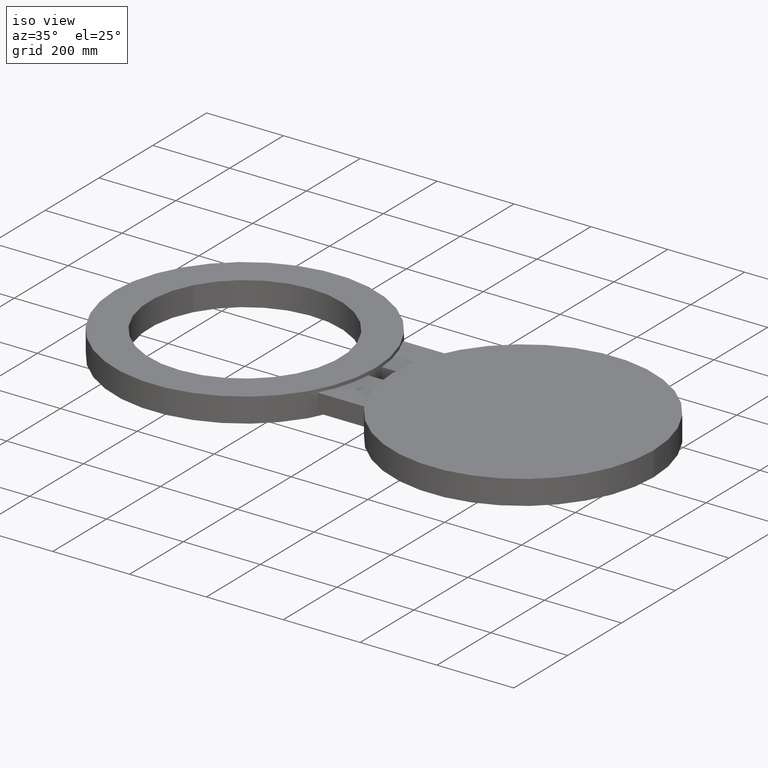
[diagram: clean part render]
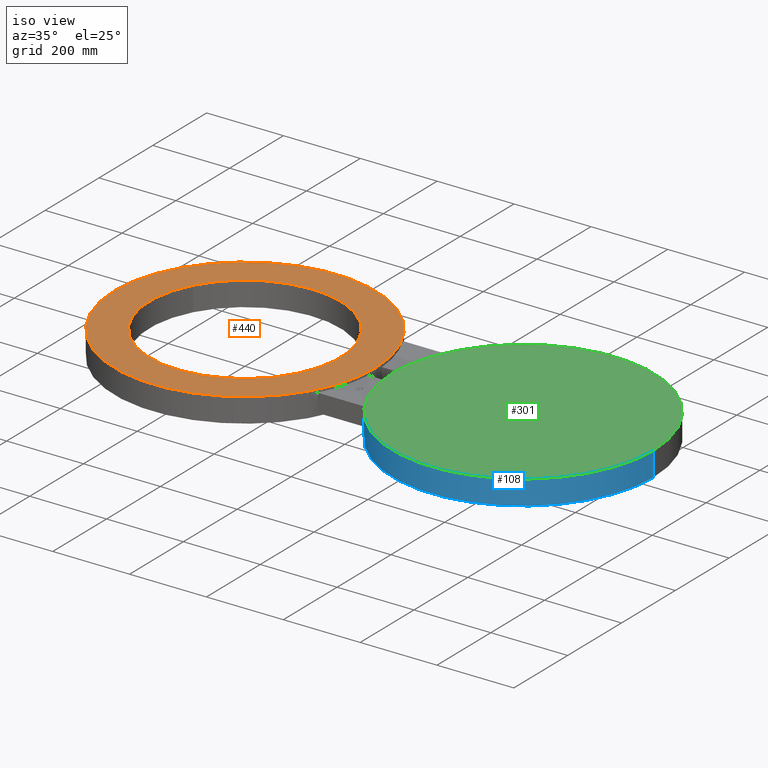
[diagram: same view with three faces highlighted in distinct colors, each labeled with its STEP entity id]
A machine part, iso view with three faces highlighted in distinct colors.
Their STEP definitions:

[orange] entity #440 — the highlighted planar face has unit normal (0, 0, 1).
#139=AXIS2_PLACEMENT_3D('Circle Axis2P3D',#137,#138,$) ;
#290=AXIS2_PLACEMENT_3D('Plane Axis2P3D',#287,#288,#289) ;
#380=AXIS2_PLACEMENT_3D('Circle Axis2P3D',#378,#379,$) ;
#417=AXIS2_PLACEMENT_3D('Circle Axis2P3D',#415,#416,$) ;
#433=AXIS2_PLACEMENT_3D('Circle Axis2P3D',#431,#432,$) ;
#120=CARTESIAN_POINT('Vertex',(-13.3750000001,-4.3017280879E-015,1.25)) ;
#134=CARTESIAN_POINT('Vertex',(13.3750000001,0.,1.25)) ;
#137=CARTESIAN_POINT('Axis2P3D Location',(0.,0.,1.25)) ;
#287=CARTESIAN_POINT('Axis2P3D Location',(0.,0.,1.25)) ;
#378=CARTESIAN_POINT('Axis2P3D Location',(0.,0.,1.25)) ;
#405=CARTESIAN_POINT('Vertex',(8.58275745532,-4.68878176757,1.25)) ;
#412=CARTESIAN_POINT('Vertex',(-8.58275745532,4.68878176757,1.25)) ;
#415=CARTESIAN_POINT('Axis2P3D Location',(8.52336574023E-017,-6.99353086378E-017,1.25)) ;
#431=CARTESIAN_POINT('Axis2P3D Location',(-2.79741234551E-016,-1.1189649382E-015,1.25)) ;
#138=DIRECTION('Axis2P3D Direction',(0.,0.,0.0393700787402)) ;
#288=DIRECTION('Axis2P3D Direction',(0.,0.,0.0393700787402)) ;
#289=DIRECTION('Axis2P3D XDirection',(0.0393700787402,0.,0.)) ;
#379=DIRECTION('Axis2P3D Direction',(0.,0.,0.0393700787402)) ;
#416=DIRECTION('Axis2P3D Direction',(0.,-0.,-0.0393700787402)) ;
#432=DIRECTION('Axis2P3D Direction',(0.,0.,0.0393700787402)) ;
#428=ORIENTED_EDGE('',*,*,#382,.T.) ;
#429=ORIENTED_EDGE('',*,*,#141,.T.) ;
#437=ORIENTED_EDGE('',*,*,#419,.F.) ;
#438=ORIENTED_EDGE('',*,*,#435,.F.) ;
#439=FACE_BOUND('',#436,.T.) ;
#440=ADVANCED_FACE('PartBody',(#430,#439),#291,.T.) ;
#140=CIRCLE('generated circle',#139,13.3750000001) ;
#381=CIRCLE('generated circle',#380,13.3750000001) ;
#418=CIRCLE('generated circle',#417,9.78000000004) ;
#434=CIRCLE('generated circle',#433,9.78000000004) ;
#141=EDGE_CURVE('',#121,#135,#140,.T.) ;
#382=EDGE_CURVE('',#135,#121,#381,.T.) ;
#419=EDGE_CURVE('',#413,#406,#418,.F.) ;
#435=EDGE_CURVE('',#406,#413,#434,.T.) ;
#427=EDGE_LOOP('',(#428,#429)) ;
#436=EDGE_LOOP('',(#437,#438)) ;
#430=FACE_OUTER_BOUND('',#427,.T.) ;
#291=PLANE('',#290) ;
#121=VERTEX_POINT('',#120) ;
#135=VERTEX_POINT('',#134) ;
#406=VERTEX_POINT('',#405) ;
#413=VERTEX_POINT('',#412) ;

[blue] entity #108 — the highlighted cylindrical surface (partial cylindrical patch) has radius 339.725 mm, axis along (0, 0, 1).
#38=AXIS2_PLACEMENT_3D('Cylinder Axis2P3D',#35,#36,#37) ;
#51=AXIS2_PLACEMENT_3D('Circle Axis2P3D',#49,#50,$) ;
#65=AXIS2_PLACEMENT_3D('Circle Axis2P3D',#63,#64,$) ;
#76=AXIS2_PLACEMENT_3D('Circle Axis2P3D',#74,#75,$) ;
#92=AXIS2_PLACEMENT_3D('Circle Axis2P3D',#90,#91,$) ;
#35=CARTESIAN_POINT('Axis2P3D Location',(28.5000000001,3.49024337758E-015,-2.79741234551E-016)) ;
#40=CARTESIAN_POINT('Line Origine',(15.1250000001,-8.11484710318E-016,-2.79741234551E-016)) ;
#44=CARTESIAN_POINT('Vertex',(15.1250000001,-8.11484710318E-016,-1.25000000001)) ;
#46=CARTESIAN_POINT('Vertex',(15.1250000001,-8.11484710318E-016,1.25)) ;
#49=CARTESIAN_POINT('Axis2P3D Location',(28.5000000001,3.49024337758E-015,-1.25000000001)) ;
#53=CARTESIAN_POINT('Vertex',(41.8750000002,1.20936995534E-014,-1.25000000001)) ;
#56=CARTESIAN_POINT('Line Origine',(41.8750000002,1.20936995534E-014,-2.79741234551E-016)) ;
#60=CARTESIAN_POINT('Vertex',(41.8750000002,1.20936995534E-014,1.25)) ;
#63=CARTESIAN_POINT('Axis2P3D Location',(28.5000000001,3.49024337758E-015,1.25)) ;
#74=CARTESIAN_POINT('Axis2P3D Location',(28.5000000001,3.49024337758E-015,0.937500000004)) ;
#78=CARTESIAN_POINT('Vertex',(15.1624355672,-1.,0.937500000004)) ;
#80=CARTESIAN_POINT('Vertex',(16.6751057088,-6.25000000003,0.937500000004)) ;
#83=CARTESIAN_POINT('Line Origine',(16.6751057088,-6.25000000003,-2.79741234551E-016)) ;
#87=CARTESIAN_POINT('Vertex',(16.6751057088,-6.25000000003,-0.937500000004)) ;
#90=CARTESIAN_POINT('Axis2P3D Location',(28.5000000001,3.49024337758E-015,-0.937500000004)) ;
#94=CARTESIAN_POINT('Vertex',(15.1624355672,-1.,-0.937500000004)) ;
#97=CARTESIAN_POINT('Line Origine',(15.1624355672,-1.,-2.79741234551E-016)) ;
#36=DIRECTION('Axis2P3D Direction',(0.,0.,0.0393700787402)) ;
#37=DIRECTION('Axis2P3D XDirection',(0.0393700787402,2.53247661366E-017,0.)) ;
#41=DIRECTION('Vector Direction',(0.,0.,0.0393700787402)) ;
#50=DIRECTION('Axis2P3D Direction',(0.,0.,0.0393700787402)) ;
#57=DIRECTION('Vector Direction',(0.,0.,0.0393700787402)) ;
#64=DIRECTION('Axis2P3D Direction',(0.,0.,0.0393700787402)) ;
#75=DIRECTION('Axis2P3D Direction',(0.,0.,0.0393700787402)) ;
#84=DIRECTION('Vector Direction',(0.,0.,0.0393700787402)) ;
#91=DIRECTION('Axis2P3D Direction',(0.,0.,0.0393700787402)) ;
#98=DIRECTION('Vector Direction',(0.,0.,0.0393700787402)) ;
#42=VECTOR('Line Direction',#41,0.0393700787402) ;
#58=VECTOR('Line Direction',#57,0.0393700787402) ;
#85=VECTOR('Line Direction',#84,0.0393700787402) ;
#99=VECTOR('Line Direction',#98,0.0393700787402) ;
#69=ORIENTED_EDGE('',*,*,#48,.F.) ;
#70=ORIENTED_EDGE('',*,*,#55,.T.) ;
#71=ORIENTED_EDGE('',*,*,#62,.T.) ;
#72=ORIENTED_EDGE('',*,*,#67,.F.) ;
#103=ORIENTED_EDGE('',*,*,#82,.T.) ;
#104=ORIENTED_EDGE('',*,*,#89,.F.) ;
#105=ORIENTED_EDGE('',*,*,#96,.F.) ;
#106=ORIENTED_EDGE('',*,*,#101,.T.) ;
#107=FACE_BOUND('',#102,.T.) ;
#108=ADVANCED_FACE('PartBody',(#73,#107),#39,.T.) ;
#52=CIRCLE('generated circle',#51,13.3750000001) ;
#66=CIRCLE('generated circle',#65,13.3750000001) ;
#77=CIRCLE('generated circle',#76,13.3750000001) ;
#93=CIRCLE('generated circle',#92,13.3750000001) ;
#39=CYLINDRICAL_SURFACE('generated cylinder',#38,13.3750000001) ;
#48=EDGE_CURVE('',#45,#47,#43,.T.) ;
#55=EDGE_CURVE('',#45,#54,#52,.T.) ;
#62=EDGE_CURVE('',#54,#61,#59,.T.) ;
#67=EDGE_CURVE('',#47,#61,#66,.T.) ;
#82=EDGE_CURVE('',#79,#81,#77,.T.) ;
#89=EDGE_CURVE('',#88,#81,#86,.T.) ;
#96=EDGE_CURVE('',#95,#88,#93,.T.) ;
#101=EDGE_CURVE('',#95,#79,#100,.T.) ;
#68=EDGE_LOOP('',(#69,#70,#71,#72)) ;
#102=EDGE_LOOP('',(#103,#104,#105,#106)) ;
#73=FACE_OUTER_BOUND('',#68,.T.) ;
#43=LINE('Line',#40,#42) ;
#59=LINE('Line',#56,#58) ;
#86=LINE('Line',#83,#85) ;
#100=LINE('Line',#97,#99) ;
#45=VERTEX_POINT('',#44) ;
#47=VERTEX_POINT('',#46) ;
#54=VERTEX_POINT('',#53) ;
#61=VERTEX_POINT('',#60) ;
#79=VERTEX_POINT('',#78) ;
#81=VERTEX_POINT('',#80) ;
#88=VERTEX_POINT('',#87) ;
#95=VERTEX_POINT('',#94) ;

[green] entity #301 — the highlighted planar face has unit normal (0, 0, 1).
#65=AXIS2_PLACEMENT_3D('Circle Axis2P3D',#63,#64,$) ;
#290=AXIS2_PLACEMENT_3D('Plane Axis2P3D',#287,#288,#289) ;
#294=AXIS2_PLACEMENT_3D('Circle Axis2P3D',#292,#293,$) ;
#46=CARTESIAN_POINT('Vertex',(15.1250000001,-8.11484710318E-016,1.25)) ;
#60=CARTESIAN_POINT('Vertex',(41.8750000002,1.20936995534E-014,1.25)) ;
#63=CARTESIAN_POINT('Axis2P3D Location',(28.5000000001,3.49024337758E-015,1.25)) ;
#287=CARTESIAN_POINT('Axis2P3D Location',(0.,0.,1.25)) ;
#292=CARTESIAN_POINT('Axis2P3D Location',(28.5000000001,3.49024337758E-015,1.25)) ;
#64=DIRECTION('Axis2P3D Direction',(0.,0.,0.0393700787402)) ;
#288=DIRECTION('Axis2P3D Direction',(0.,0.,0.0393700787402)) ;
#289=DIRECTION('Axis2P3D XDirection',(0.0393700787402,0.,0.)) ;
#293=DIRECTION('Axis2P3D Direction',(0.,0.,0.0393700787402)) ;
#298=ORIENTED_EDGE('',*,*,#67,.T.) ;
#299=ORIENTED_EDGE('',*,*,#296,.T.) ;
#301=ADVANCED_FACE('PartBody',(#300),#291,.T.) ;
#66=CIRCLE('generated circle',#65,13.3750000001) ;
#295=CIRCLE('generated circle',#294,13.3750000001) ;
#67=EDGE_CURVE('',#47,#61,#66,.T.) ;
#296=EDGE_CURVE('',#61,#47,#295,.T.) ;
#297=EDGE_LOOP('',(#298,#299)) ;
#300=FACE_OUTER_BOUND('',#297,.T.) ;
#291=PLANE('',#290) ;
#47=VERTEX_POINT('',#46) ;
#61=VERTEX_POINT('',#60) ;